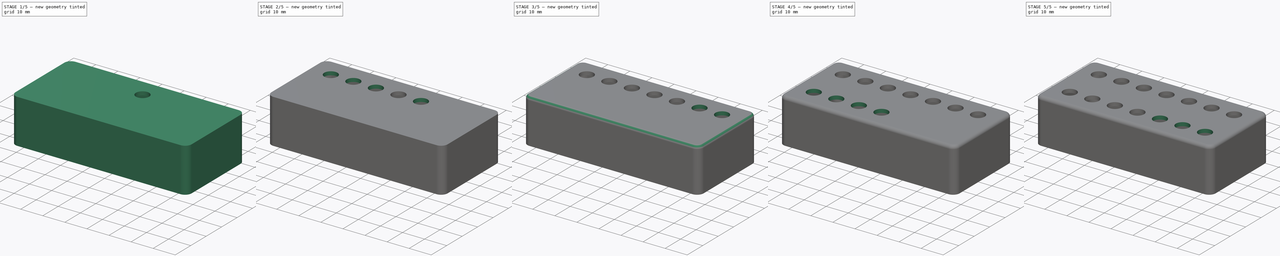
[diagram: build sequence overview — one tinted view per stage of 5, left to right]
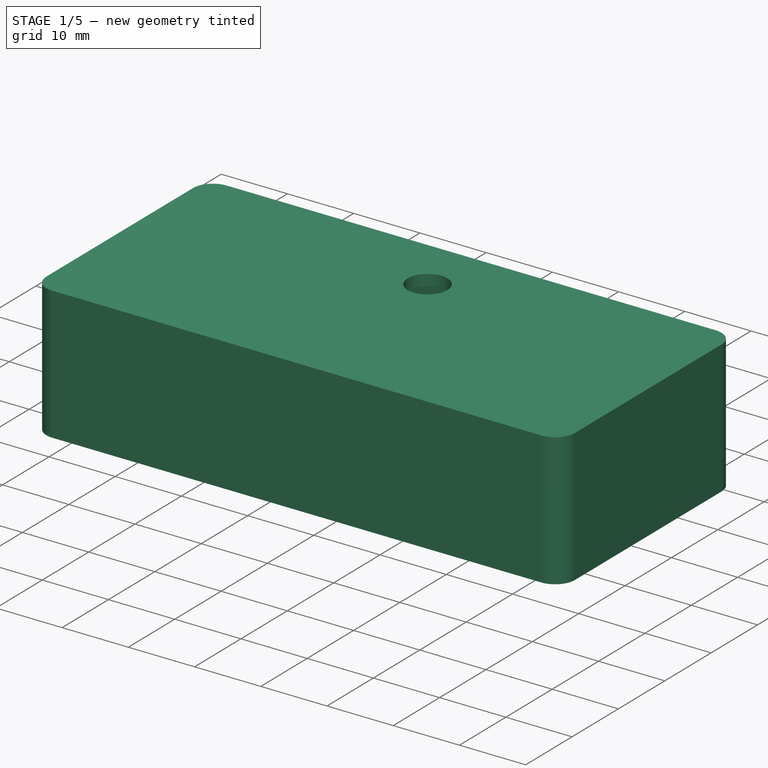
[diagram: stage 1 of 5 — iso view after this stage's code; geometry added in this stage tinted green]
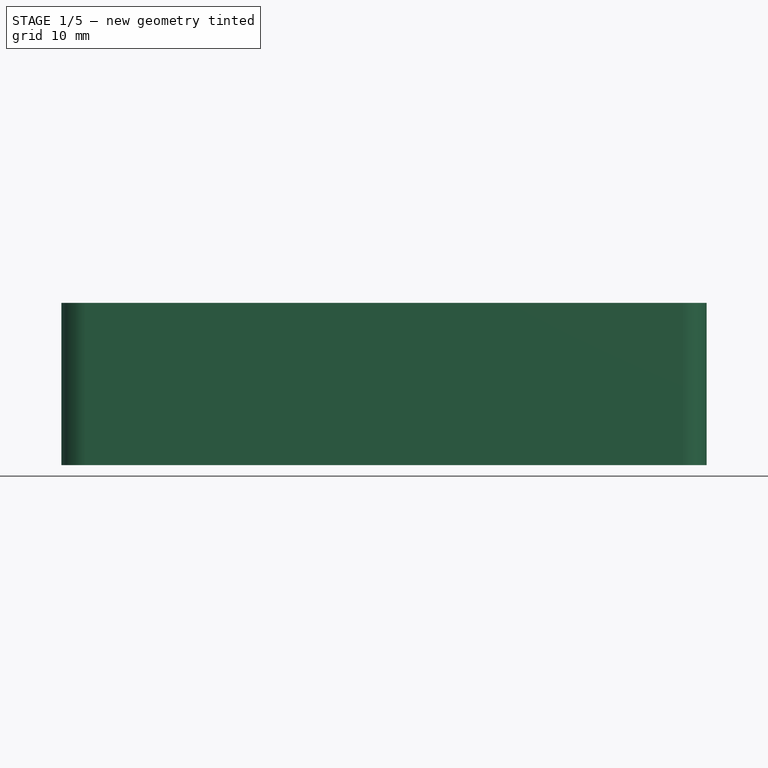
[diagram: stage 1 of 5 — front view after this stage's code; geometry added in this stage tinted green]
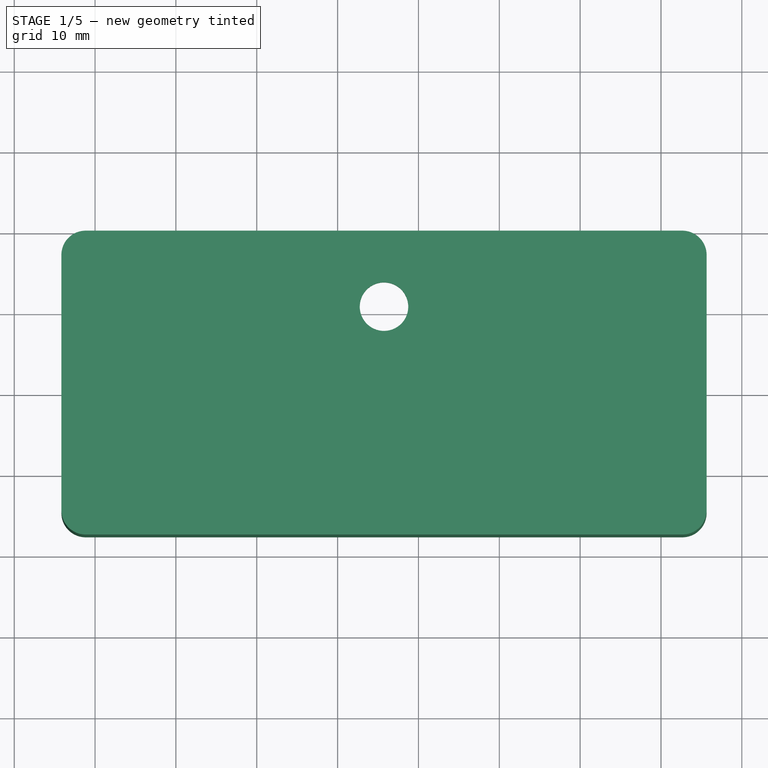
[diagram: stage 1 of 5 — top view after this stage's code; geometry added in this stage tinted green]
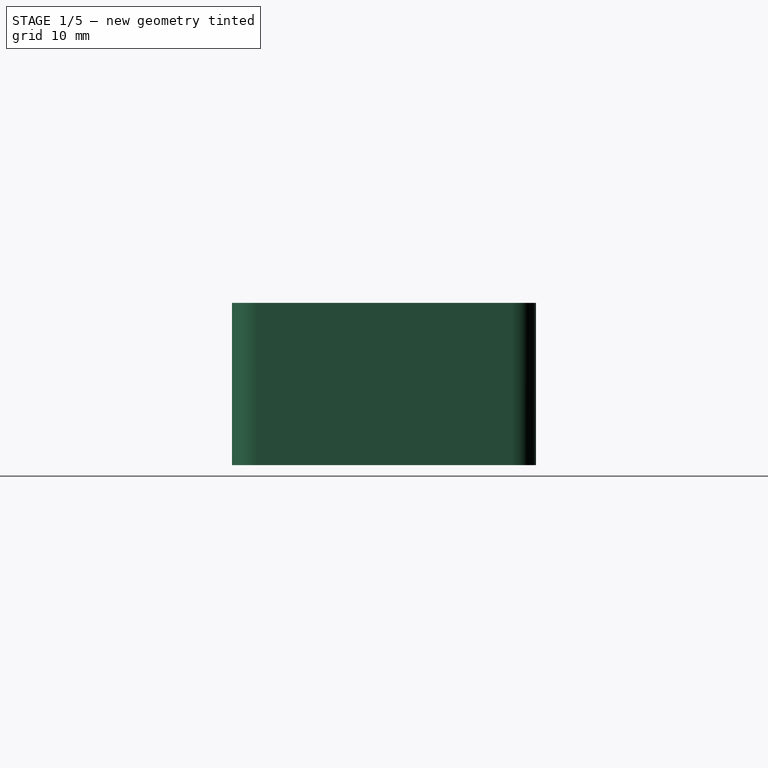
[diagram: stage 1 of 5 — right view after this stage's code; geometry added in this stage tinted green]
FCSTD DOCUMENT  (FreeCAD 0.19R24291 (Git))
Label: cover_humbucker_7strings_full_holed
License: Creative Commons 4.0 By
LicenseURL: https://github.com/RmX382/Humbucker-Cover-7/blob/main/Licence.md
objects: Sketcher::SketchObject×16, PartDesign::Hole×14, PartDesign::Pad×1, PartDesign::Pocket×1, PartDesign::Fillet×1, PartDesign::Body×1
note: 51 computed .brp shape members not serialized (recipe doc carries the construction recipe); baked Part::Feature solids carry a one-line shape summary decoded from their .brp

FEATURE [Sketcher::SketchObject] Sketch
  FullyConstrained = false
  MapMode = 5
  Support = -> [XY_Plane]
  sketch-geometry (8):
    g0: LineSegment StartX=18.8341 StartY=40.0188 StartZ=0 EndX=92.6441 EndY=40.0188 EndZ=0
    g1: LineSegment StartX=95.6441 StartY=37.0188 StartZ=0 EndX=95.6441 EndY=5.42879 EndZ=0
    g2: LineSegment StartX=92.6441 StartY=2.42879 StartZ=0 EndX=18.8341 EndY=2.42879 EndZ=0
    g3: LineSegment StartX=15.8341 StartY=5.42879 StartZ=0 EndX=15.8341 EndY=37.0188 EndZ=0
    g4: ArcOfCircle CenterX=18.8341 CenterY=37.0188 CenterZ=0 NormalX=0 NormalY=0 NormalZ=1 AngleXU=0 Radius=3 StartAngle=1.5708 EndAngle=3.14159
    g5: ArcOfCircle CenterX=18.8341 CenterY=5.42879 CenterZ=0 NormalX=0 NormalY=0 NormalZ=1 AngleXU=0 Radius=3 StartAngle=3.14159 EndAngle=4.71239
    g6: ArcOfCircle CenterX=92.6441 CenterY=5.42879 CenterZ=0 NormalX=0 NormalY=0 NormalZ=1 AngleXU=0 Radius=3 StartAngle=4.71239 EndAngle=6.28319
    g7: ArcOfCircle CenterX=92.6441 CenterY=37.0188 CenterZ=0 NormalX=0 NormalY=0 NormalZ=1 AngleXU=0 Radius=3 StartAngle=-2.462e-12 EndAngle=1.5708
  constraints (18):
    c: Horizontal(g0)
    c: Horizontal(g2)
    c: Vertical(g1)
    c: Vertical(g3)
    c: Tangent(g0,g4) = 1.5708
    c: Tangent(g3,g4) = 1.5708
    c: Tangent(g2,g5) = 1.5708
    c: Tangent(g3,g5) = 1.5708
    c: Tangent(g1,g6) = 1.5708
    c: Tangent(g2,g6) = 1.5708
    c: Tangent(g0,g7) = 1.5708
    c: Tangent(g1,g7) = 1.5708
    c: Radius(g4) = 3
    c: Radius(g5) = 3
    c: Radius(g6) = 3
    c: Radius(g7) = 3
    c: DistanceY(g2,g0) = 37.59
    c: DistanceX(g3,g1) = 79.81
FEATURE [PartDesign::Pad] Pad
  Direction = (1,1,1)
  Length = 20.07
  Length2 = 100
  Profile = -> Sketch
  Type = 0
FEATURE [Sketcher::SketchObject] Sketch001
  ExternalGeometry = -> [Pad]
  FullyConstrained = true
  MapMode = 5
  Placement = pos=(0,0,0) rot=(1,0,0;3.14159rad)
  Support = -> [Pad]
  sketch-geometry (8):
    g0: LineSegment StartX=19.3441 StartY=-2.93379 StartZ=0 EndX=92.1341 EndY=-2.93379 EndZ=0
    g1: LineSegment StartX=95.1341 StartY=-5.93379 StartZ=0 EndX=95.1341 EndY=-36.5138 EndZ=0
    g2: LineSegment StartX=92.1341 StartY=-39.5138 StartZ=0 EndX=19.3441 EndY=-39.5138 EndZ=0
    g3: LineSegment StartX=16.3441 StartY=-36.5138 StartZ=0 EndX=16.3441 EndY=-5.93379 EndZ=0
    g4: ArcOfCircle CenterX=19.3441 CenterY=-5.93379 CenterZ=0 NormalX=0 NormalY=0 NormalZ=1 AngleXU=0 Radius=3 StartAngle=1.5708 EndAngle=3.14159
    g5: ArcOfCircle CenterX=19.3441 CenterY=-36.5138 CenterZ=0 NormalX=0 NormalY=0 NormalZ=1 AngleXU=0 Radius=3 StartAngle=3.14159 EndAngle=4.71239
    g6: ArcOfCircle CenterX=92.1341 CenterY=-36.5138 CenterZ=0 NormalX=0 NormalY=0 NormalZ=1 AngleXU=0 Radius=3 StartAngle=4.71239 EndAngle=6.28319
    g7: ArcOfCircle CenterX=92.1341 CenterY=-5.93379 CenterZ=0 NormalX=0 NormalY=0 NormalZ=1 AngleXU=0 Radius=3 StartAngle=0 EndAngle=1.5708
  constraints (20):
    c: Horizontal(g0)
    c: Horizontal(g2)
    c: Vertical(g1)
    c: Vertical(g3)
    c: Tangent(g0,g4) = 1.5708
    c: Tangent(g3,g4) = 1.5708
    c: Tangent(g2,g5) = 1.5708
    c: Tangent(g3,g5) = 1.5708
    c: Tangent(g1,g6) = 1.5708
    c: Tangent(g2,g6) = 1.5708
    c: Tangent(g0,g7) = 1.5708
    c: Tangent(g1,g7) = 1.5708
    c: Radius(g4) = 3
    c: Radius(g5) = 3
    c: Radius(g6) = 3
    c: Radius(g7) = 3
    c: DistanceX(g-5,g3) = 0.51
    c: DistanceX(g1,g-6) = 0.51
    c: DistanceY(g0,g-3) = 0.505
    c: DistanceY(g-4,g2) = 0.505
FEATURE [PartDesign::Pocket] Pocket
  BaseFeature = -> Pad
  Length = 18.42
  Length2 = 100
  Profile = -> Sketch001
  Type = 0
FEATURE [Sketcher::SketchObject] Sketch002
  ExternalGeometry = -> [Pocket]
  FullyConstrained = true
  MapMode = 5
  Placement = pos=(0,0,20.07) rot=(0,0,1;0rad)
  Support = -> [Pocket]
  sketch-geometry (1):
    g0: Circle CenterX=55.7391 CenterY=30.6213 CenterZ=0 NormalX=0 NormalY=0 NormalZ=1 AngleXU=0 Radius=2.58
  constraints (3):
    c: Radius(g0) = 2.58
    c: Distance(g0,g-4) = 39.905
    c: Distance(g0,g-3) = 9.3975
FEATURE [PartDesign::Hole] Hole
  BaseFeature = -> Pocket
  Depth = 25
  DepthType = 0
  Diameter = 6
  DrillForDepth = false
  DrillPoint = 1
  DrillPointAngle = 118
  HoleCutCountersinkAngle = 90
  HoleCutCustomValues = false
  HoleCutDepth = 0
  HoleCutDiameter = 6.1
  HoleCutType = 0
  ModelActualThread = false
  Profile = -> Sketch002
  Tapered = false
  TaperedAngle = 90
  ThreadAngle = 0
  ThreadClass = 0
  ThreadCutOffInner = 0
  ThreadCutOffOuter = 0
  ThreadDirection = 0
  ThreadFit = 0
  ThreadPitch = 0
  ThreadSize = 0
  ThreadType = 0
  Threaded = false
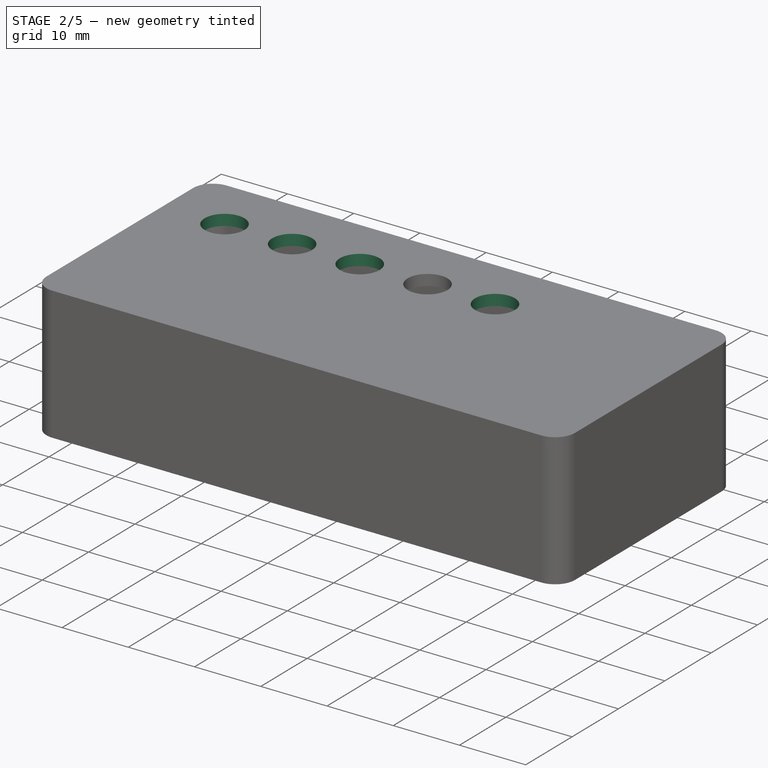
[diagram: stage 2 of 5 — iso view after this stage's code; geometry added in this stage tinted green]
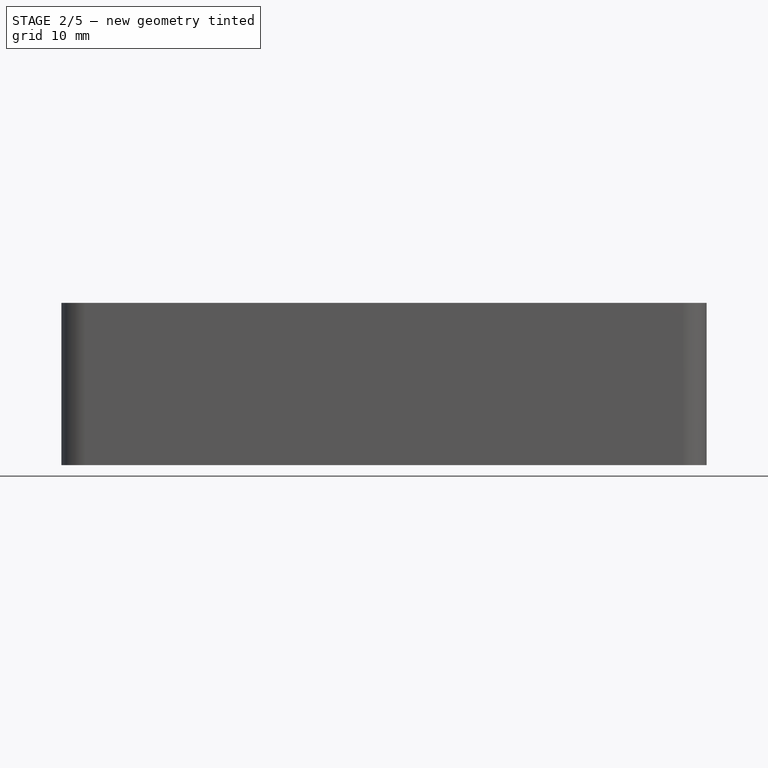
[diagram: stage 2 of 5 — front view after this stage's code; geometry added in this stage tinted green]
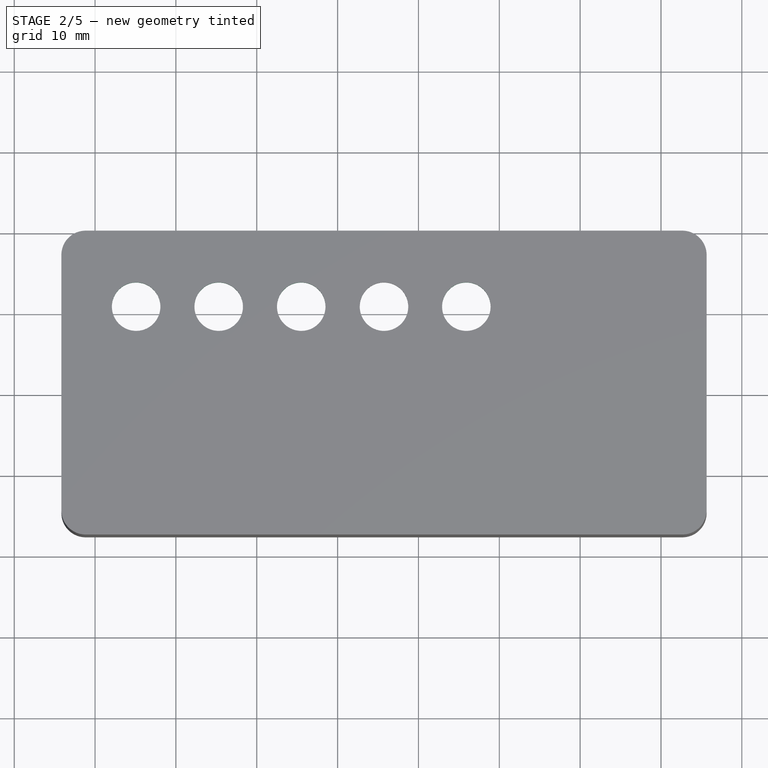
[diagram: stage 2 of 5 — top view after this stage's code; geometry added in this stage tinted green]
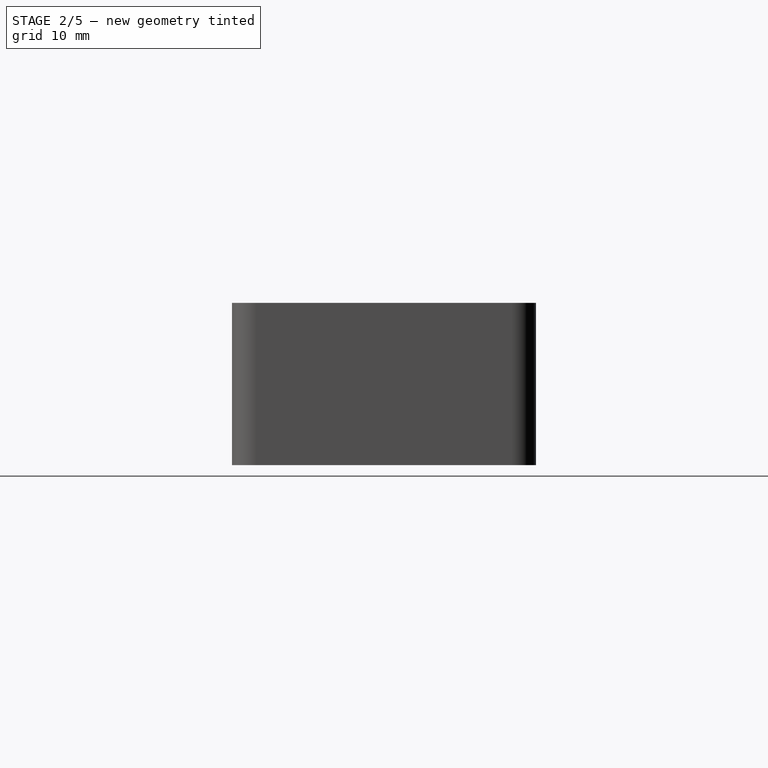
[diagram: stage 2 of 5 — right view after this stage's code; geometry added in this stage tinted green]
FEATURE [Sketcher::SketchObject] Sketch003
  ExternalGeometry = -> [Hole]
  FullyConstrained = true
  MapMode = 5
  Placement = pos=(0,0,20.07) rot=(0,0,1;0rad)
  Support = -> [Hole]
  sketch-geometry (1):
    g0: Circle CenterX=45.5013 CenterY=30.6213 CenterZ=0 NormalX=0 NormalY=0 NormalZ=1 AngleXU=0 Radius=2.58
  constraints (3):
    c: Radius(g0) = 2.58
    c: Distance(g0,g-3) = 9.3975
    c: Distance(g0,g-4) = 29.6672
FEATURE [PartDesign::Hole] Hole001
  BaseFeature = -> Hole
  Depth = 25
  DepthType = 0
  Diameter = 6
  DrillForDepth = false
  DrillPoint = 1
  DrillPointAngle = 118
  HoleCutCountersinkAngle = 90
  HoleCutCustomValues = false
  HoleCutDepth = 0
  HoleCutDiameter = 6.1
  HoleCutType = 0
  ModelActualThread = false
  Profile = -> Sketch003
  Tapered = false
  TaperedAngle = 90
  ThreadAngle = 0
  ThreadClass = 0
  ThreadCutOffInner = 0
  ThreadCutOffOuter = 0
  ThreadDirection = 0
  ThreadFit = 0
  ThreadPitch = 0
  ThreadSize = 0
  ThreadType = 0
  Threaded = false
FEATURE [Sketcher::SketchObject] Sketch004
  ExternalGeometry = -> [Hole001]
  FullyConstrained = true
  MapMode = 5
  Placement = pos=(0,0,20.07) rot=(0,0,1;0rad)
  Support = -> [Hole001]
  sketch-geometry (1):
    g0: Circle CenterX=35.2905 CenterY=30.6213 CenterZ=0 NormalX=0 NormalY=0 NormalZ=1 AngleXU=0 Radius=2.58
  constraints (3):
    c: Radius(g0) = 2.58
    c: Distance(g0,g-3) = 9.3975
    c: Distance(g0,g-4) = 19.4564
FEATURE [PartDesign::Hole] Hole002
  BaseFeature = -> Hole001
  Depth = 25
  DepthType = 0
  Diameter = 6
  DrillForDepth = false
  DrillPoint = 1
  DrillPointAngle = 118
  HoleCutCountersinkAngle = 90
  HoleCutCustomValues = false
  HoleCutDepth = 0
  HoleCutDiameter = 6.1
  HoleCutType = 0
  ModelActualThread = false
  Profile = -> Sketch004
  Tapered = false
  TaperedAngle = 90
  ThreadAngle = 0
  ThreadClass = 0
  ThreadCutOffInner = 0
  ThreadCutOffOuter = 0
  ThreadDirection = 0
  ThreadFit = 0
  ThreadPitch = 0
  ThreadSize = 0
  ThreadType = 0
  Threaded = false
FEATURE [Sketcher::SketchObject] Sketch005
  ExternalGeometry = -> [Hole002]
  FullyConstrained = true
  MapMode = 5
  Placement = pos=(0,0,20.07) rot=(0,0,1;0rad)
  Support = -> [Hole002]
  sketch-geometry (1):
    g0: Circle CenterX=25.0797 CenterY=30.6213 CenterZ=0 NormalX=0 NormalY=0 NormalZ=1 AngleXU=0 Radius=2.58
  constraints (3):
    c: Radius(g0) = 2.58
    c: Distance(g0,g-3) = 9.3975
    c: Distance(g0,g-4) = 9.2456
FEATURE [PartDesign::Hole] Hole003
  BaseFeature = -> Hole002
  Depth = 25
  DepthType = 0
  Diameter = 6
  DrillForDepth = false
  DrillPoint = 1
  DrillPointAngle = 118
  HoleCutCountersinkAngle = 90
  HoleCutCustomValues = false
  HoleCutDepth = 0
  HoleCutDiameter = 6.1
  HoleCutType = 0
  ModelActualThread = false
  Profile = -> Sketch005
  Tapered = false
  TaperedAngle = 90
  ThreadAngle = 0
  ThreadClass = 0
  ThreadCutOffInner = 0
  ThreadCutOffOuter = 0
  ThreadDirection = 0
  ThreadFit = 0
  ThreadPitch = 0
  ThreadSize = 0
  ThreadType = 0
  Threaded = false
FEATURE [Sketcher::SketchObject] Sketch006
  ExternalGeometry = -> [Hole003]
  FullyConstrained = true
  MapMode = 5
  Placement = pos=(0,0,20.07) rot=(0,0,1;0rad)
  Support = -> [Hole003]
  sketch-geometry (1):
    g0: Circle CenterX=65.9229 CenterY=30.6213 CenterZ=0 NormalX=0 NormalY=0 NormalZ=1 AngleXU=0 Radius=2.58
  constraints (3):
    c: Radius(g0) = 2.58
    c: Distance(g0,g-3) = 9.3975
    c: Distance(g0,g-5) = 50.0888
FEATURE [PartDesign::Hole] Hole004
  BaseFeature = -> Hole003
  Depth = 25
  DepthType = 0
  Diameter = 6
  DrillForDepth = false
  DrillPoint = 1
  DrillPointAngle = 118
  HoleCutCountersinkAngle = 90
  HoleCutCustomValues = false
  HoleCutDepth = 0
  HoleCutDiameter = 6.1
  HoleCutType = 0
  ModelActualThread = false
  Profile = -> Sketch006
  Tapered = false
  TaperedAngle = 90
  ThreadAngle = 0
  ThreadClass = 0
  ThreadCutOffInner = 0
  ThreadCutOffOuter = 0
  ThreadDirection = 0
  ThreadFit = 0
  ThreadPitch = 0
  ThreadSize = 0
  ThreadType = 0
  Threaded = false
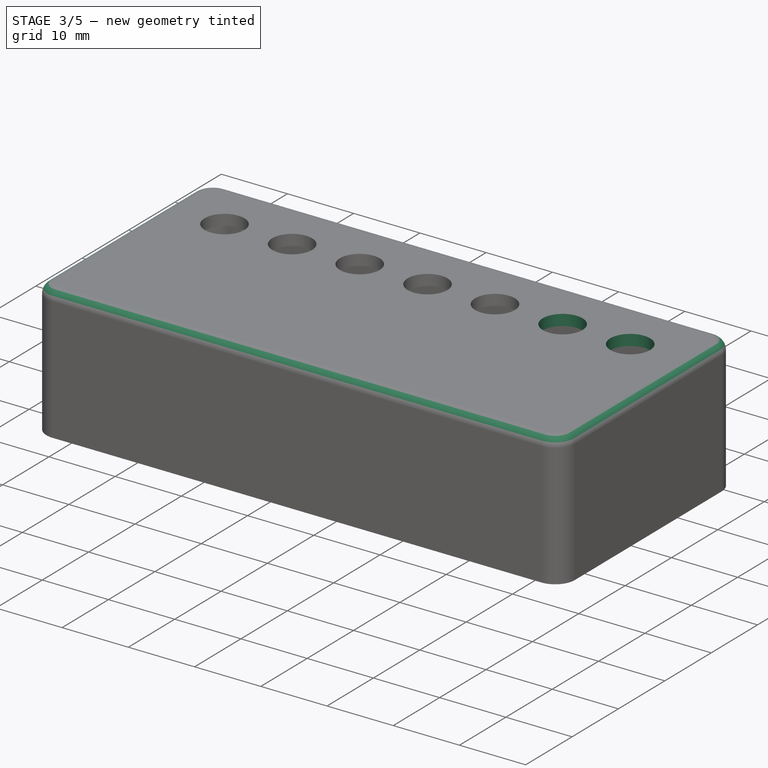
[diagram: stage 3 of 5 — iso view after this stage's code; geometry added in this stage tinted green]
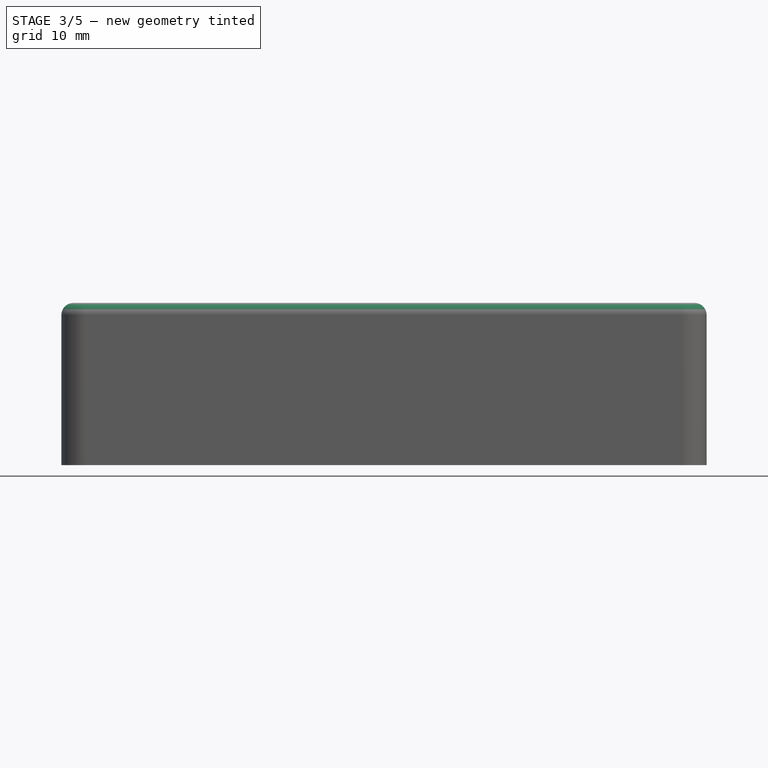
[diagram: stage 3 of 5 — front view after this stage's code; geometry added in this stage tinted green]
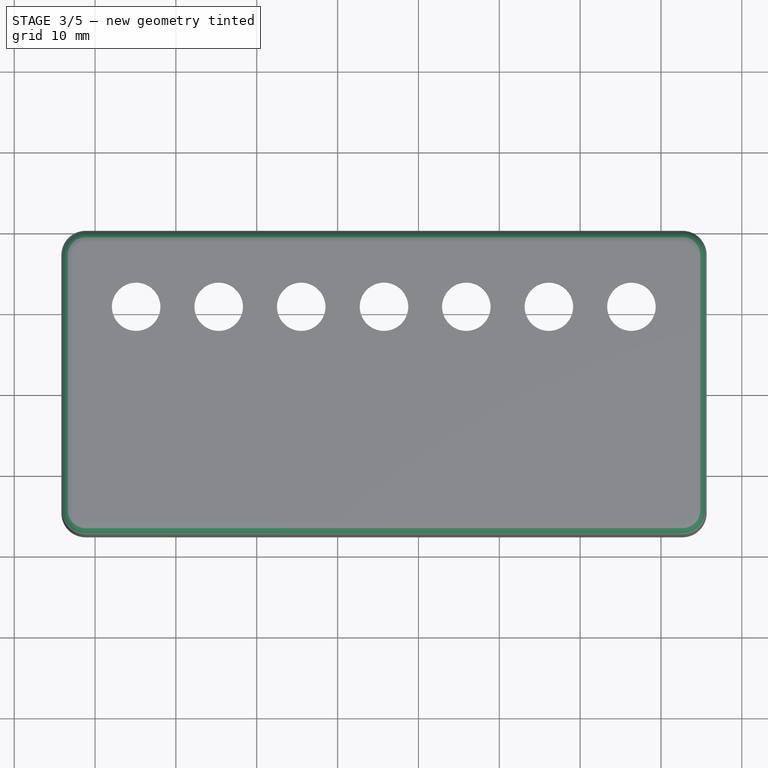
[diagram: stage 3 of 5 — top view after this stage's code; geometry added in this stage tinted green]
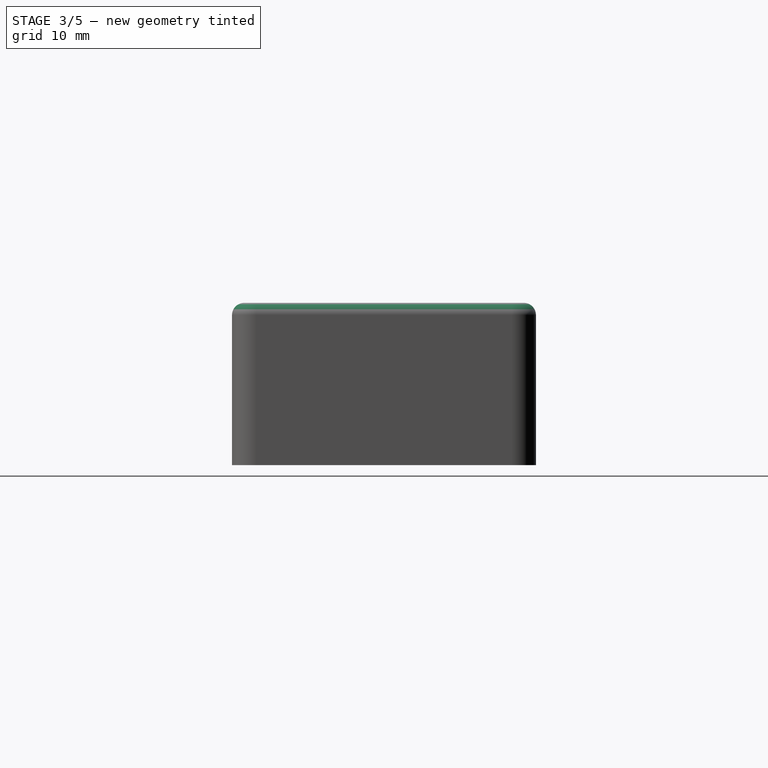
[diagram: stage 3 of 5 — right view after this stage's code; geometry added in this stage tinted green]
FEATURE [Sketcher::SketchObject] Sketch007
  ExternalGeometry = -> [Hole004]
  FullyConstrained = true
  MapMode = 5
  Placement = pos=(0,0,20.07) rot=(0,0,1;0rad)
  Support = -> [Hole004]
  sketch-geometry (1):
    g0: Circle CenterX=76.1337 CenterY=30.6213 CenterZ=0 NormalX=0 NormalY=0 NormalZ=1 AngleXU=0 Radius=2.58
  constraints (3):
    c: Radius(g0) = 2.58
    c: Distance(g0,g-3) = 9.3975
    c: Distance(g0,g-5) = 60.2996
FEATURE [PartDesign::Hole] Hole005
  BaseFeature = -> Hole004
  Depth = 25
  DepthType = 0
  Diameter = 6
  DrillForDepth = false
  DrillPoint = 1
  DrillPointAngle = 118
  HoleCutCountersinkAngle = 90
  HoleCutCustomValues = false
  HoleCutDepth = 0
  HoleCutDiameter = 6.1
  HoleCutType = 0
  ModelActualThread = false
  Profile = -> Sketch007
  Tapered = false
  TaperedAngle = 90
  ThreadAngle = 0
  ThreadClass = 0
  ThreadCutOffInner = 0
  ThreadCutOffOuter = 0
  ThreadDirection = 0
  ThreadFit = 0
  ThreadPitch = 0
  ThreadSize = 0
  ThreadType = 0
  Threaded = false
FEATURE [Sketcher::SketchObject] Sketch008
  ExternalGeometry = -> [Hole005]
  FullyConstrained = true
  MapMode = 5
  Placement = pos=(0,0,20.07) rot=(0,0,1;0rad)
  Support = -> [Hole005]
  sketch-geometry (1):
    g0: Circle CenterX=86.3445 CenterY=30.6213 CenterZ=0 NormalX=0 NormalY=0 NormalZ=1 AngleXU=0 Radius=2.58
  constraints (3):
    c: Radius(g0) = 2.58
    c: Distance(g0,g-3) = 9.3975
    c: Distance(g0,g-5) = 70.5104
FEATURE [PartDesign::Hole] Hole006
  BaseFeature = -> Hole005
  Depth = 25
  DepthType = 0
  Diameter = 6
  DrillForDepth = false
  DrillPoint = 1
  DrillPointAngle = 118
  HoleCutCountersinkAngle = 90
  HoleCutCustomValues = false
  HoleCutDepth = 0
  HoleCutDiameter = 6.1
  HoleCutType = 0
  ModelActualThread = false
  Profile = -> Sketch008
  Tapered = false
  TaperedAngle = 90
  ThreadAngle = 0
  ThreadClass = 0
  ThreadCutOffInner = 0
  ThreadCutOffOuter = 0
  ThreadDirection = 0
  ThreadFit = 0
  ThreadPitch = 0
  ThreadSize = 0
  ThreadType = 0
  Threaded = false
FEATURE [PartDesign::Fillet] Fillet
  Base = -> Hole006 [Edge25]
  BaseFeature = -> Hole006
  Radius = 1.5
  SupportTransform = false
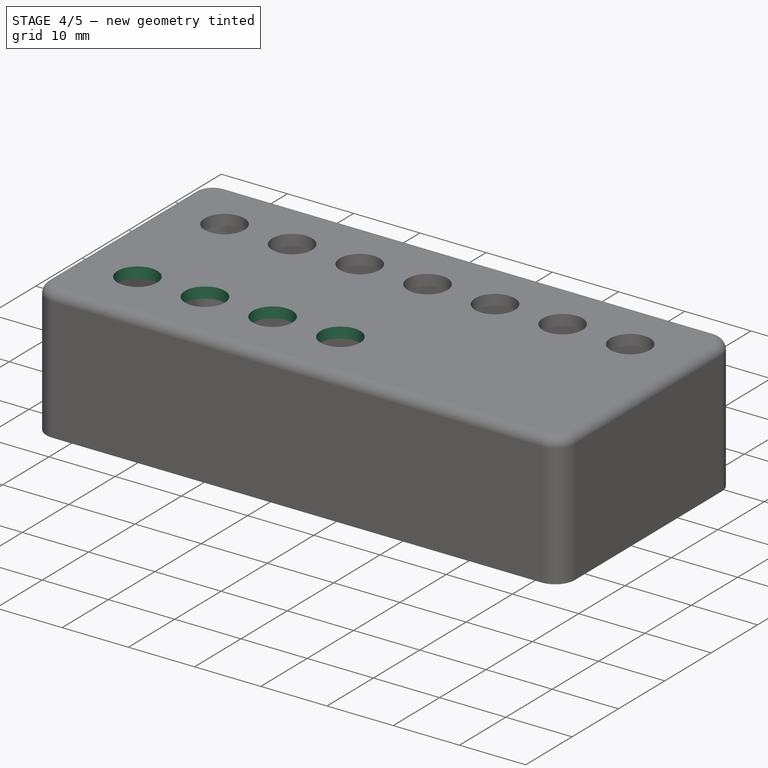
[diagram: stage 4 of 5 — iso view after this stage's code; geometry added in this stage tinted green]
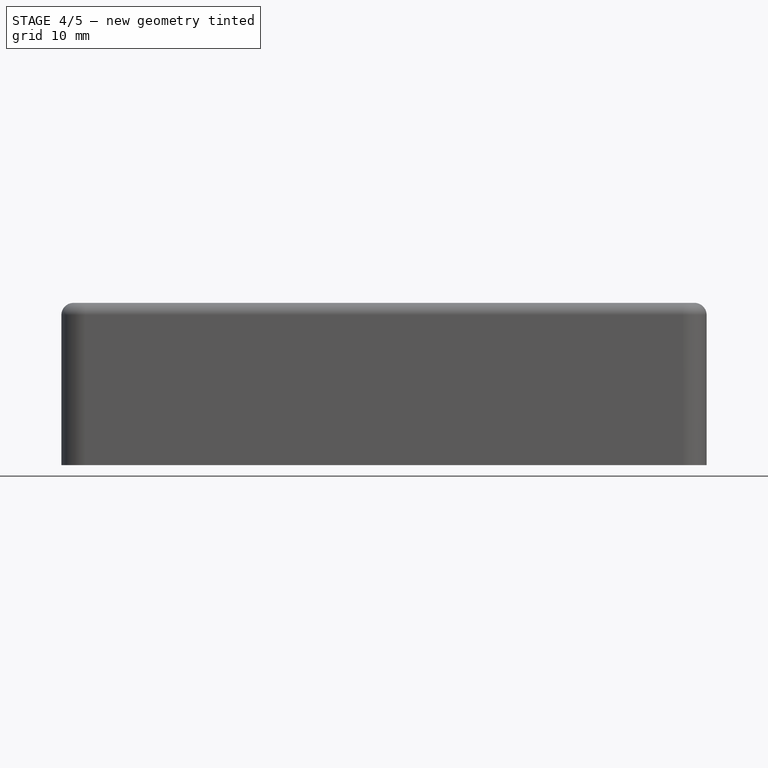
[diagram: stage 4 of 5 — front view after this stage's code; geometry added in this stage tinted green]
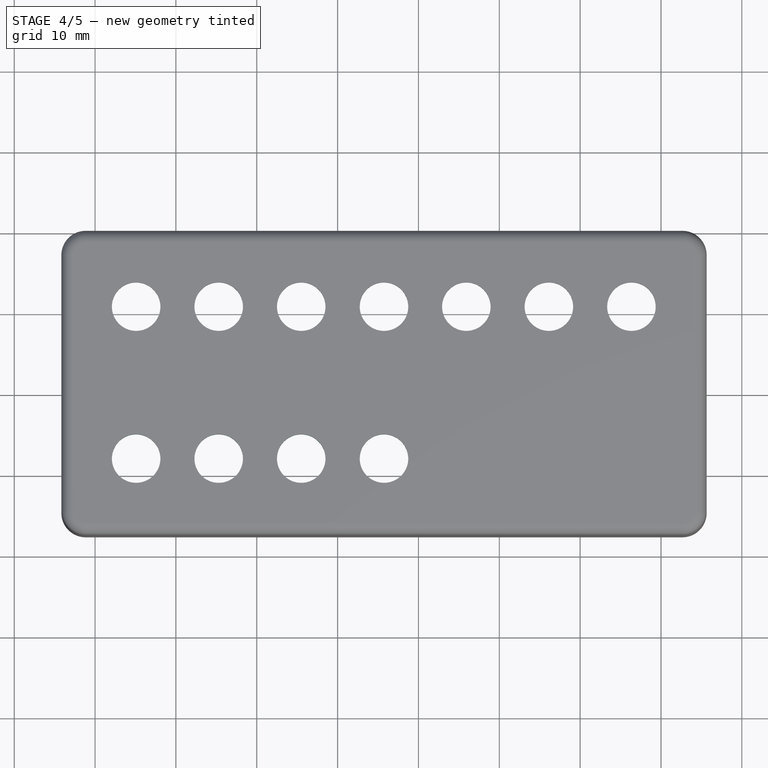
[diagram: stage 4 of 5 — top view after this stage's code; geometry added in this stage tinted green]
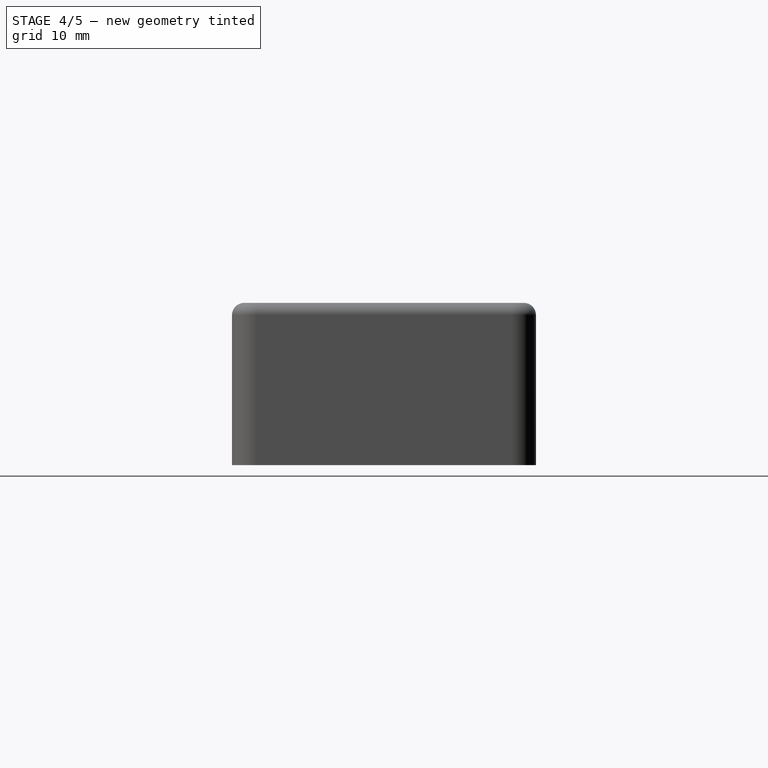
[diagram: stage 4 of 5 — right view after this stage's code; geometry added in this stage tinted green]
FEATURE [Sketcher::SketchObject] Sketch009
  ExternalGeometry = -> [Fillet]
  FullyConstrained = true
  MapMode = 5
  Placement = pos=(0,0,20.07) rot=(0,0,1;0rad)
  Support = -> [Fillet]
  sketch-geometry (1):
    g0: Circle CenterX=55.7391 CenterY=11.8263 CenterZ=0 NormalX=0 NormalY=0 NormalZ=1 AngleXU=0 Radius=2.58
  constraints (3):
    c: Radius(g0) = 2.58
    c: Distance(g0,g-4) = 9.3975
    c: Distance(g0,g-3) = 39.905
FEATURE [PartDesign::Hole] Hole007
  BaseFeature = -> Fillet
  Depth = 25
  DepthType = 0
  Diameter = 6
  DrillForDepth = false
  DrillPoint = 1
  DrillPointAngle = 118
  HoleCutCountersinkAngle = 90
  HoleCutCustomValues = false
  HoleCutDepth = 0
  HoleCutDiameter = 6.1
  HoleCutType = 0
  ModelActualThread = false
  Profile = -> Sketch009
  Tapered = false
  TaperedAngle = 90
  ThreadAngle = 0
  ThreadClass = 0
  ThreadCutOffInner = 0
  ThreadCutOffOuter = 0
  ThreadDirection = 0
  ThreadFit = 0
  ThreadPitch = 0
  ThreadSize = 0
  ThreadType = 0
  Threaded = false
FEATURE [Sketcher::SketchObject] Sketch010
  ExternalGeometry = -> [Hole007]
  FullyConstrained = true
  MapMode = 5
  Placement = pos=(0,0,20.07) rot=(0,0,1;0rad)
  Support = -> [Hole007]
  sketch-geometry (1):
    g0: Circle CenterX=45.5013 CenterY=11.8263 CenterZ=0 NormalX=0 NormalY=0 NormalZ=1 AngleXU=0 Radius=2.58
  constraints (3):
    c: Radius(g0) = 2.58
    c: Distance(g0,g-4) = 9.3975
    c: Distance(g0,g-3) = 29.6672
FEATURE [PartDesign::Hole] Hole008
  BaseFeature = -> Hole007
  Depth = 25
  DepthType = 0
  Diameter = 6
  DrillForDepth = false
  DrillPoint = 1
  DrillPointAngle = 118
  HoleCutCountersinkAngle = 90
  HoleCutCustomValues = false
  HoleCutDepth = 0
  HoleCutDiameter = 6.1
  HoleCutType = 0
  ModelActualThread = false
  Profile = -> Sketch010
  Tapered = false
  TaperedAngle = 90
  ThreadAngle = 0
  ThreadClass = 0
  ThreadCutOffInner = 0
  ThreadCutOffOuter = 0
  ThreadDirection = 0
  ThreadFit = 0
  ThreadPitch = 0
  ThreadSize = 0
  ThreadType = 0
  Threaded = false
FEATURE [Sketcher::SketchObject] Sketch011
  ExternalGeometry = -> [Hole008]
  FullyConstrained = true
  MapMode = 5
  Placement = pos=(0,0,20.07) rot=(0,0,1;0rad)
  Support = -> [Hole008]
  sketch-geometry (1):
    g0: Circle CenterX=35.2905 CenterY=11.8263 CenterZ=0 NormalX=0 NormalY=0 NormalZ=1 AngleXU=0 Radius=2.58
  constraints (3):
    c: Radius(g0) = 2.58
    c: Distance(g0,g-3) = 9.3975
    c: Distance(g0,g-4) = 19.4564
FEATURE [PartDesign::Hole] Hole009
  BaseFeature = -> Hole008
  Depth = 25
  DepthType = 0
  Diameter = 6
  DrillForDepth = false
  DrillPoint = 1
  DrillPointAngle = 118
  HoleCutCountersinkAngle = 90
  HoleCutCustomValues = false
  HoleCutDepth = 0
  HoleCutDiameter = 6.1
  HoleCutType = 0
  ModelActualThread = false
  Profile = -> Sketch011
  Tapered = false
  TaperedAngle = 90
  ThreadAngle = 0
  ThreadClass = 0
  ThreadCutOffInner = 0
  ThreadCutOffOuter = 0
  ThreadDirection = 0
  ThreadFit = 0
  ThreadPitch = 0
  ThreadSize = 0
  ThreadType = 0
  Threaded = false
FEATURE [Sketcher::SketchObject] Sketch012
  ExternalGeometry = -> [Hole009]
  FullyConstrained = true
  MapMode = 5
  Placement = pos=(0,0,20.07) rot=(0,0,1;0rad)
  Support = -> [Hole009]
  sketch-geometry (1):
    g0: Circle CenterX=25.0797 CenterY=11.8263 CenterZ=0 NormalX=0 NormalY=0 NormalZ=1 AngleXU=0 Radius=2.58
  constraints (3):
    c: Radius(g0) = 2.58
    c: Distance(g0,g-4) = 9.3975
    c: Distance(g0,g-3) = 9.2456
FEATURE [PartDesign::Hole] Hole010
  BaseFeature = -> Hole009
  Depth = 25
  DepthType = 0
  Diameter = 6
  DrillForDepth = false
  DrillPoint = 1
  DrillPointAngle = 118
  HoleCutCountersinkAngle = 90
  HoleCutCustomValues = false
  HoleCutDepth = 0
  HoleCutDiameter = 6.1
  HoleCutType = 0
  ModelActualThread = false
  Profile = -> Sketch012
  Tapered = false
  TaperedAngle = 90
  ThreadAngle = 0
  ThreadClass = 0
  ThreadCutOffInner = 0
  ThreadCutOffOuter = 0
  ThreadDirection = 0
  ThreadFit = 0
  ThreadPitch = 0
  ThreadSize = 0
  ThreadType = 0
  Threaded = false
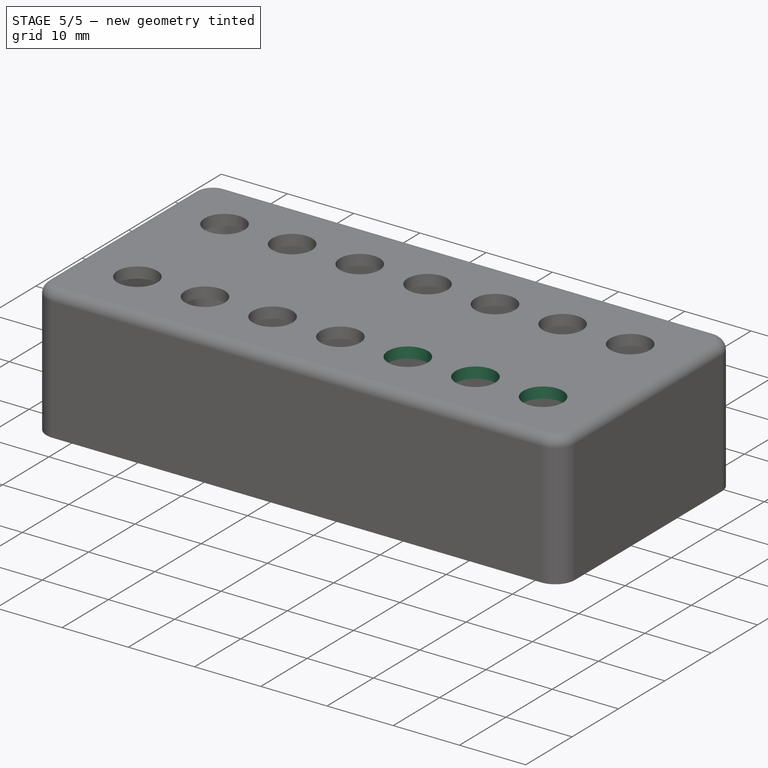
[diagram: stage 5 of 5 — iso view after this stage's code; geometry added in this stage tinted green]
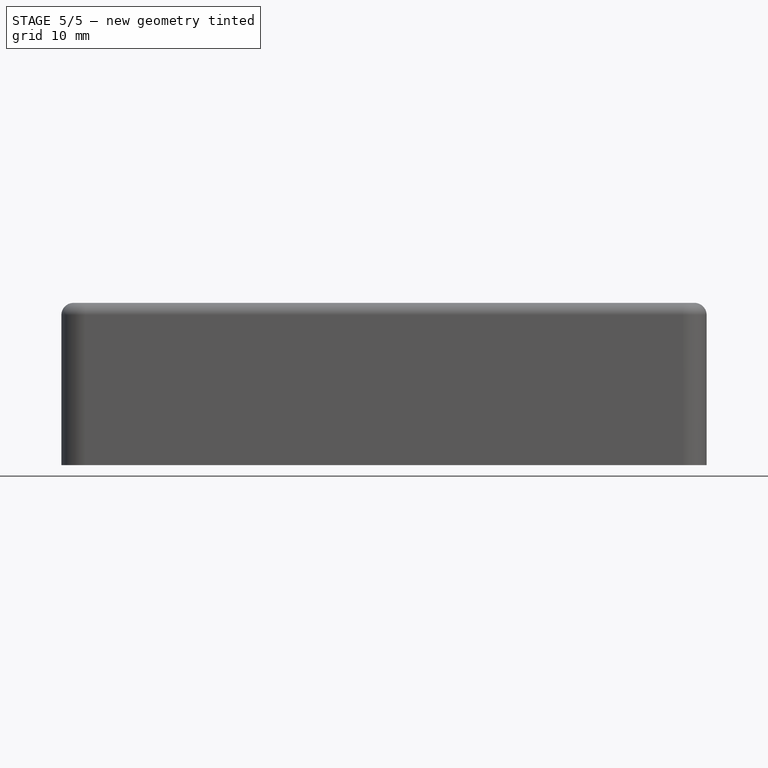
[diagram: stage 5 of 5 — front view after this stage's code; geometry added in this stage tinted green]
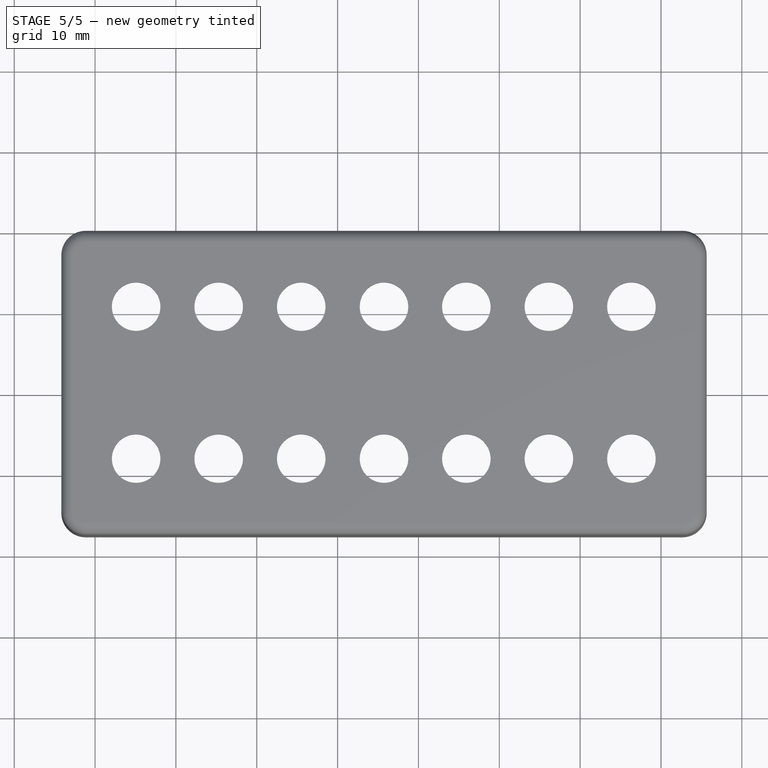
[diagram: stage 5 of 5 — top view after this stage's code; geometry added in this stage tinted green]
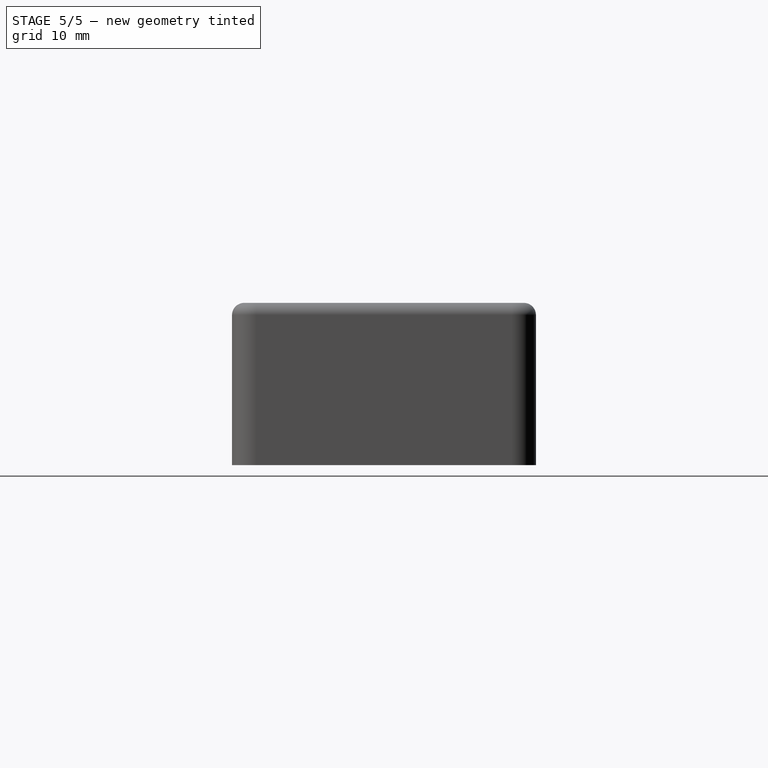
[diagram: stage 5 of 5 — right view after this stage's code; geometry added in this stage tinted green]
FEATURE [Sketcher::SketchObject] Sketch013
  ExternalGeometry = -> [Hole010]
  FullyConstrained = true
  MapMode = 5
  Placement = pos=(0,0,20.07) rot=(0,0,1;0rad)
  Support = -> [Hole010]
  sketch-geometry (1):
    g0: Circle CenterX=65.9229 CenterY=11.8263 CenterZ=0 NormalX=0 NormalY=0 NormalZ=1 AngleXU=0 Radius=2.58
  constraints (3):
    c: Radius(g0) = 2.58
    c: Distance(g0,g-4) = 9.3975
    c: Distance(g0,g-3) = 50.0888
FEATURE [PartDesign::Hole] Hole011
  BaseFeature = -> Hole010
  Depth = 25
  DepthType = 0
  Diameter = 6
  DrillForDepth = false
  DrillPoint = 1
  DrillPointAngle = 118
  HoleCutCountersinkAngle = 90
  HoleCutCustomValues = false
  HoleCutDepth = 0
  HoleCutDiameter = 6.1
  HoleCutType = 0
  ModelActualThread = false
  Profile = -> Sketch013
  Tapered = false
  TaperedAngle = 90
  ThreadAngle = 0
  ThreadClass = 0
  ThreadCutOffInner = 0
  ThreadCutOffOuter = 0
  ThreadDirection = 0
  ThreadFit = 0
  ThreadPitch = 0
  ThreadSize = 0
  ThreadType = 0
  Threaded = false
FEATURE [Sketcher::SketchObject] Sketch014
  ExternalGeometry = -> [Hole011]
  FullyConstrained = true
  MapMode = 5
  Placement = pos=(0,0,20.07) rot=(0,0,1;0rad)
  Support = -> [Hole011]
  sketch-geometry (1):
    g0: Circle CenterX=76.1337 CenterY=11.8263 CenterZ=0 NormalX=0 NormalY=0 NormalZ=1 AngleXU=0 Radius=2.58
  constraints (3):
    c: Radius(g0) = 2.58
    c: Distance(g0,g-4) = 9.3975
    c: Distance(g0,g-3) = 60.2996
FEATURE [PartDesign::Hole] Hole012
  BaseFeature = -> Hole011
  Depth = 25
  DepthType = 0
  Diameter = 6
  DrillForDepth = false
  DrillPoint = 1
  DrillPointAngle = 118
  HoleCutCountersinkAngle = 90
  HoleCutCustomValues = false
  HoleCutDepth = 0
  HoleCutDiameter = 6.1
  HoleCutType = 0
  ModelActualThread = false
  Profile = -> Sketch014
  Tapered = false
  TaperedAngle = 90
  ThreadAngle = 0
  ThreadClass = 0
  ThreadCutOffInner = 0
  ThreadCutOffOuter = 0
  ThreadDirection = 0
  ThreadFit = 0
  ThreadPitch = 0
  ThreadSize = 0
  ThreadType = 0
  Threaded = false
FEATURE [Sketcher::SketchObject] Sketch015
  ExternalGeometry = -> [Hole012]
  FullyConstrained = true
  MapMode = 5
  Placement = pos=(0,0,20.07) rot=(0,0,1;0rad)
  Support = -> [Hole012]
  sketch-geometry (1):
    g0: Circle CenterX=86.3445 CenterY=11.8263 CenterZ=0 NormalX=0 NormalY=0 NormalZ=1 AngleXU=0 Radius=2.58
  constraints (3):
    c: Radius(g0) = 2.58
    c: Distance(g0,g-4) = 9.3975
    c: Distance(g0,g-3) = 70.5104
FEATURE [PartDesign::Hole] Hole013
  BaseFeature = -> Hole012
  Depth = 25
  DepthType = 0
  Diameter = 6
  DrillForDepth = false
  DrillPoint = 1
  DrillPointAngle = 118
  HoleCutCountersinkAngle = 90
  HoleCutCustomValues = false
  HoleCutDepth = 0
  HoleCutDiameter = 6.1
  HoleCutType = 0
  ModelActualThread = false
  Profile = -> Sketch015
  Tapered = false
  TaperedAngle = 90
  ThreadAngle = 0
  ThreadClass = 0
  ThreadCutOffInner = 0
  ThreadCutOffOuter = 0
  ThreadDirection = 0
  ThreadFit = 0
  ThreadPitch = 0
  ThreadSize = 0
  ThreadType = 0
  Threaded = false
FEATURE [PartDesign::Body] Body
  Group = -> [Sketch,Pad,Sketch001,Pocket,Sketch002,Hole,Sketch003,Hole001,Sketch004,Hole002,Sketch005,Hole003,Sketch006,Hole004,Sketch007,Hole005,Sketch008,Hole006,Fillet,Sketch009,Hole007,Sketch010,Hole008,Sketch011,Hole009,Sketch012,Hole010,Sketch013,Hole011,Sketch014,Hole012,Sketch015,Hole013]
  Origin = -> Origin
  Tip = -> Hole013
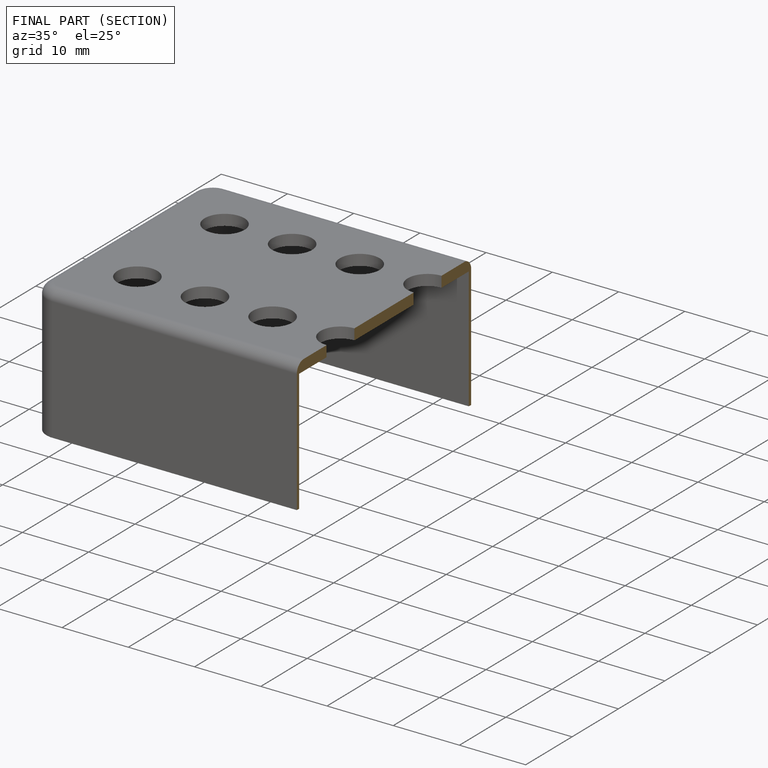
[diagram: finished part — half-section view (interior)]
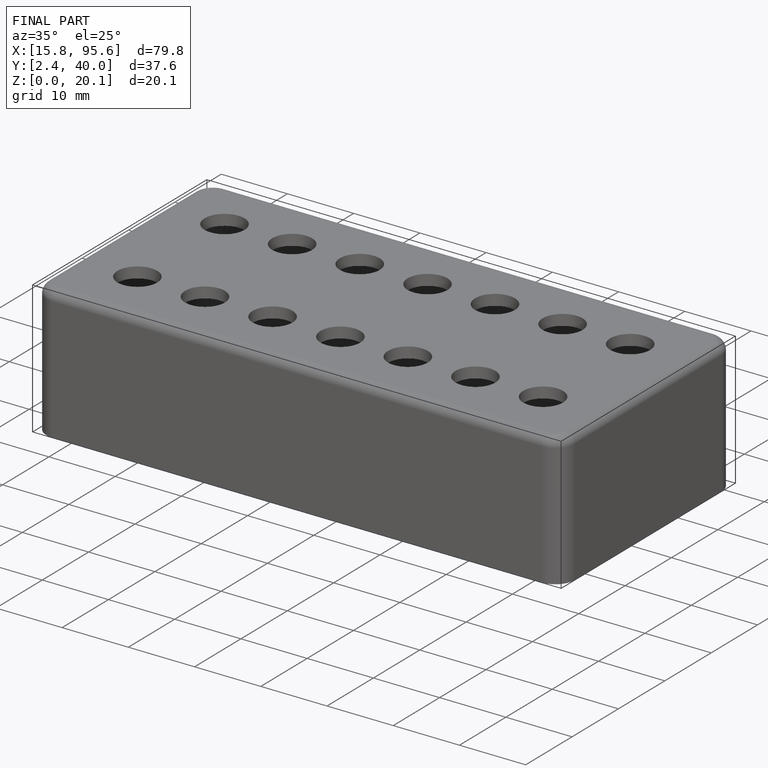
[diagram: finished part — iso view with bounding-box wireframe]
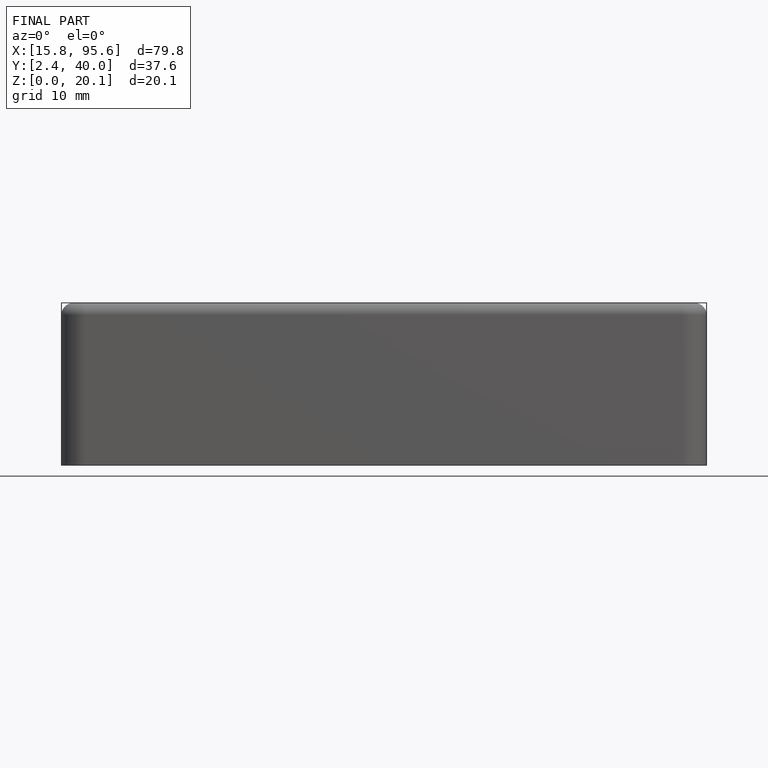
[diagram: finished part — front view with bounding-box wireframe]
